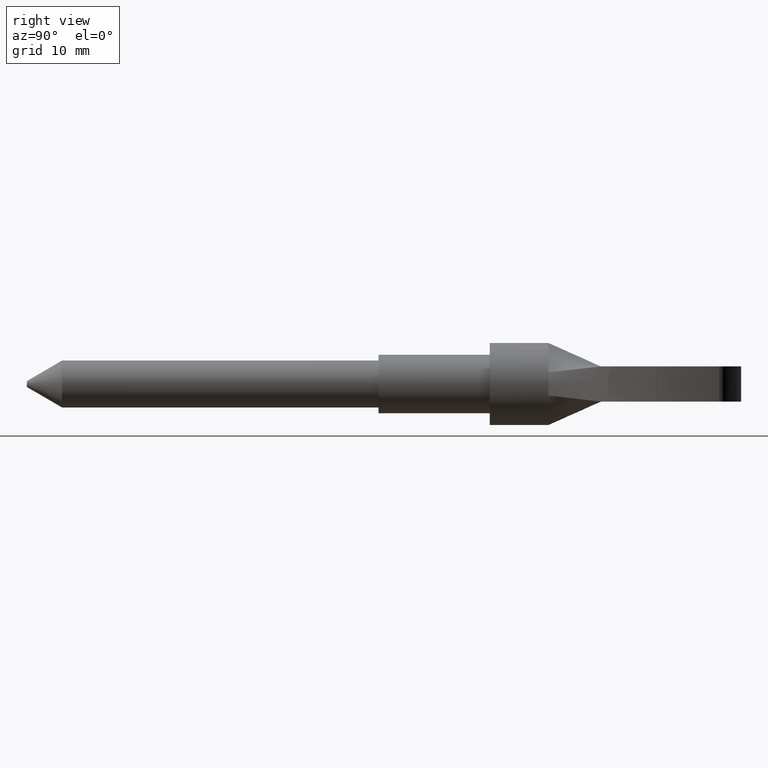
[diagram: clean part render]
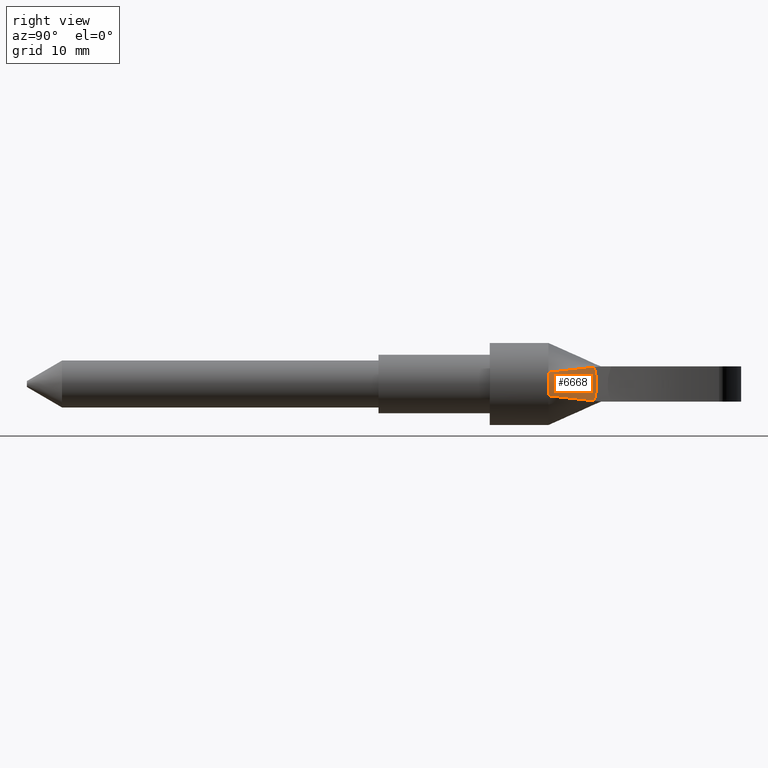
[diagram: same view with one face highlighted and labeled with its STEP entity id]
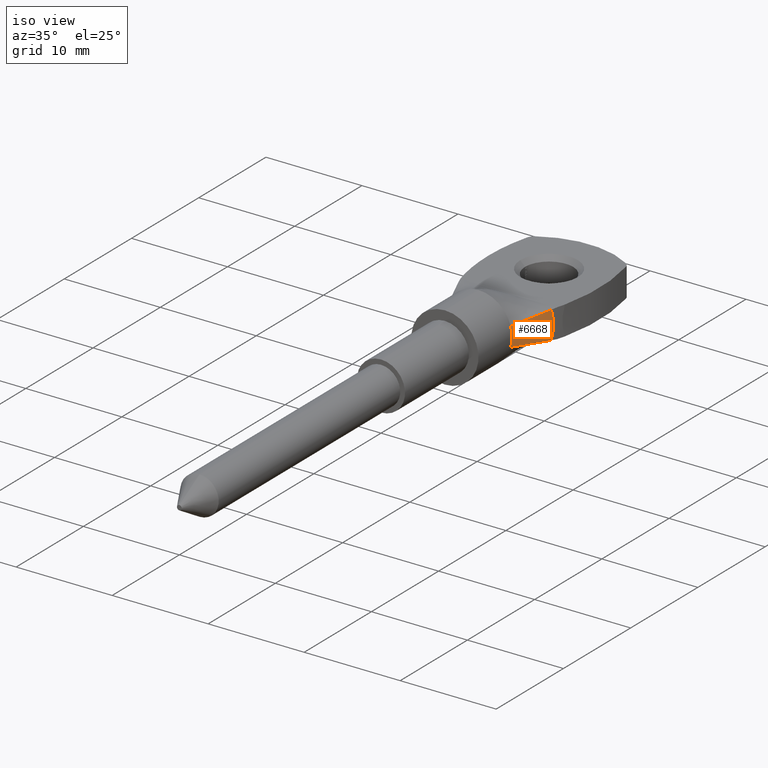
[diagram: same view with one face highlighted and labeled with its STEP entity id]
A machine part, right view. The second image highlights one B-rep face of the part: STEP entity #6668.
A second angle (iso view) of the same face is appended — the face is thin or edge-on in the first view.
In plain terms, the highlighted face is a freeform B-spline surface patch.
Its self-contained STEP definition (entity closure, byte-faithful):
#31 = CARTESIAN_POINT ( 'NONE',  ( 3.500000000000000000, 44.50000000000000700, 0.3388236185237012400 ) ) ;
#699 = VERTEX_POINT ( 'NONE', #11407 ) ;
#1026 = CARTESIAN_POINT ( 'NONE',  ( 3.355650335498186400, 44.50000000000000000, 0.9955416600269948500 ) ) ;
#1245 = CARTESIAN_POINT ( 'NONE',  ( 5.056021605490289300, 49.00000000000000000, 1.500000000000000000 ) ) ;
#1290 = FACE_OUTER_BOUND ( 'NONE', #11064, .T. ) ;
#1968 = AXIS2_PLACEMENT_3D ( 'NONE', #6611, #7741, #4405 ) ;
#2234 = CARTESIAN_POINT ( 'NONE',  ( 3.355446201275429400, 44.50000000000000000, -0.9954801807903017600 ) ) ;
#2282 = CARTESIAN_POINT ( 'NONE',  ( 5.056021605490289300, 48.99999999999999300, 1.000000000000000000 ) ) ;
#2362 = CARTESIAN_POINT ( 'NONE',  ( 4.205733903382859600, 46.75000000000000000, 1.247740090395150800 ) ) ;
#2376 = CARTESIAN_POINT ( 'NONE',  ( 3.449825324165552300, 44.50000000000000000, 0.6773582578305116200 ) ) ;
#2669 = LINE ( 'NONE', #2362, #4055 ) ;
#2987 = VERTEX_POINT ( 'NONE', #1026 ) ;
#3024 = EDGE_CURVE ( 'NONE', #699, #10960, #3936, .T. ) ;
#3274 = CARTESIAN_POINT ( 'NONE',  ( 4.924405192743686900, 48.61936564056037500, 0.2432541085417614400 ) ) ;
#3874 = ORIENTED_EDGE ( 'NONE', *, *, #10516, .F. ) ;
#3905 = ORIENTED_EDGE ( 'NONE', *, *, #12652, .F. ) ;
#3936 = B_SPLINE_CURVE_WITH_KNOTS ( 'NONE', 3,
 ( #12095, #5428, #13210, #6527, #9877, #3274, #10999, #14248, #7693, #12127 ),
 .UNSPECIFIED., .F., .F.,
 ( 4, 2, 2, 2, 4 ),
 ( -5.999999999432032100E-008, 0.0007292683851826090500, 0.001458596770365212500, 0.002187925155547815800, 0.002917253540730419100 ),
 .UNSPECIFIED. ) ;
#4055 = VECTOR ( 'NONE', #5538, 1000.000000000000100 ) ;
#4405 = DIRECTION ( 'NONE',  ( 0.0000000000000000000, 0.0000000000000000000, 1.000000000000000000 ) ) ;
#4691 = ORIENTED_EDGE ( 'NONE', *, *, #10163, .T. ) ;
#5428 = CARTESIAN_POINT ( 'NONE',  ( 4.870413742553309600, 48.49285644150210600, -1.204315359903770800 ) ) ;
#5538 = DIRECTION ( 'NONE',  ( 0.3515770152094535000, 0.9303301485610877600, 0.1043044440794158900 ) ) ;
#5555 = CARTESIAN_POINT ( 'NONE',  ( 5.056021605490289300, 49.00000000000000000, -1.500000000000000000 ) ) ;
#6323 = DIRECTION ( 'NONE',  ( -0.3515770152094537200, -0.9303301485610876400, 0.1043044440794158300 ) ) ;
#6527 = CARTESIAN_POINT ( 'NONE',  ( 4.918094483037434900, 48.60380004757317400, -0.4851963550409773000 ) ) ;
#6611 = CARTESIAN_POINT ( 'NONE',  ( 0.0000000000000000000, 44.50000000000000000, 0.0000000000000000000 ) ) ;
#6668 = ADVANCED_FACE ( 'NONE', ( #1290 ), #6688, .T. ) ;
#6688 = B_SPLINE_SURFACE_WITH_KNOTS ( 'NONE', 3, 1, ( 
 ( #5555, #2234 ),
 ( #8892, #12179 ),
 ( #11129, #9957 ),
 ( #6763, #31 ),
 ( #2282, #2376 ),
 ( #1245, #11229 ) ),
 .UNSPECIFIED., .F., .F., .F.,
 ( 4, 2, 4 ),
 ( 2, 2 ),
 ( 0.0000000000000000000, 0.5000000000000000000, 1.000000000000000000 ),
 ( 0.0000000000000000000, 1.000000000000000000 ),
 .UNSPECIFIED. ) ;
#6763 = CARTESIAN_POINT ( 'NONE',  ( 5.056021605490289300, 48.99999999999999300, 0.5000000000000000000 ) ) ;
#7162 = CIRCLE ( 'NONE', #1968, 3.500000000000000000 ) ;
#7644 = LINE ( 'NONE', #13008, #9027 ) ;
#7693 = CARTESIAN_POINT ( 'NONE',  ( 4.870413742531670000, 48.49285644140879700, 1.204315359873275900 ) ) ;
#7741 = DIRECTION ( 'NONE',  ( 0.0000000000000000000, 1.000000000000000000, 0.0000000000000000000 ) ) ;
#8848 = VERTEX_POINT ( 'NONE', #8996 ) ;
#8892 = CARTESIAN_POINT ( 'NONE',  ( 5.056021605490289300, 48.99999999999999300, -1.000000000000000000 ) ) ;
#8996 = CARTESIAN_POINT ( 'NONE',  ( 3.355623742967408500, 44.50000000000000000, -0.9955336942899908300 ) ) ;
#9027 = VECTOR ( 'NONE', #6323, 1000.000000000000100 ) ;
#9877 = CARTESIAN_POINT ( 'NONE',  ( 4.924401263639972500, 48.61935611570248000, -0.2434724550323593400 ) ) ;
#9957 = CARTESIAN_POINT ( 'NONE',  ( 3.500000000000000400, 44.50000000000000700, -0.3388236185237013500 ) ) ;
#10163 = EDGE_CURVE ( 'NONE', #2987, #8848, #7162, .T. ) ;
#10516 = EDGE_CURVE ( 'NONE', #2987, #10960, #2669, .T. ) ;
#10960 = VERTEX_POINT ( 'NONE', #13618 ) ;
#10999 = CARTESIAN_POINT ( 'NONE',  ( 4.918102579959842100, 48.60381905943898300, 0.4850462424804253800 ) ) ;
#11064 = EDGE_LOOP ( 'NONE', ( #3905, #12614, #3874, #4691 ) ) ;
#11129 = CARTESIAN_POINT ( 'NONE',  ( 5.056021605490289300, 48.99999999999999300, -0.5000000000000000000 ) ) ;
#11229 = CARTESIAN_POINT ( 'NONE',  ( 3.355446201275429800, 44.50000000000000000, 0.9954801807903017600 ) ) ;
#11407 = CARTESIAN_POINT ( 'NONE',  ( 4.838615001930322500, 48.42470665305691600, -1.435500689912829800 ) ) ;
#12095 = CARTESIAN_POINT ( 'NONE',  ( 4.838615001930322500, 48.42470665305691600, -1.435500689912829800 ) ) ;
#12127 = CARTESIAN_POINT ( 'NONE',  ( 4.838615001930321600, 48.42470665305691600, 1.435500689912829800 ) ) ;
#12179 = CARTESIAN_POINT ( 'NONE',  ( 3.449825324165551400, 44.50000000000000700, -0.6773582578305118500 ) ) ;
#12614 = ORIENTED_EDGE ( 'NONE', *, *, #3024, .T. ) ;
#12652 = EDGE_CURVE ( 'NONE', #699, #8848, #7644, .T. ) ;
#13008 = CARTESIAN_POINT ( 'NONE',  ( 4.205733903382859600, 46.75000000000000000, -1.247740090395150800 ) ) ;
#13210 = CARTESIAN_POINT ( 'NONE',  ( 4.891120016396342900, 48.54061752085353700, -0.9652113295887760900 ) ) ;
#13618 = CARTESIAN_POINT ( 'NONE',  ( 4.838615001930321600, 48.42470665305691600, 1.435500689912829800 ) ) ;
#14248 = CARTESIAN_POINT ( 'NONE',  ( 4.891113733231556200, 48.54060275737100500, 0.9653291656357212400 ) ) ;